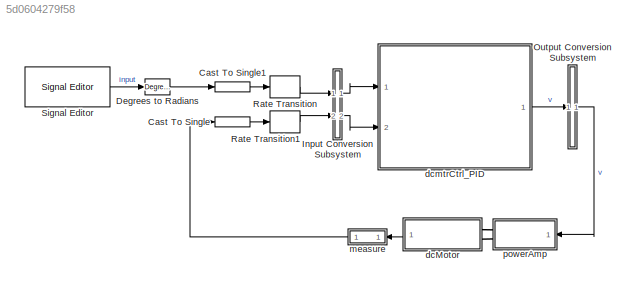
MODEL slx_5d0604279f58
KIND model
CONFIG AbsTol = auto
CONFIG EnableMultiTasking = off
CONFIG FixedStep = auto
CONFIG MaxStep = auto
CONFIG MinStep = auto
CONFIG PostLoadFcn = load('dcmtr_params');
CONFIG RelTol = 1e-3
CONFIG SampleTimeConstraint = Unconstrained
CONFIG SolverName = ode15s
CONFIG StartTime = 0.0
CONFIG StopTime = 13
BLOCK [DataTypeConversion] Cast To Single
  OutDataTypeStr = single
  RndMeth = Floor
  SaturateOnIntegerOverflow = off
BLOCK [DataTypeConversion] Cast To Single1
  OutDataTypeStr = single
  RndMeth = Floor
  SaturateOnIntegerOverflow = off
BLOCK [Reference] Degrees to Radians  REF=simulink_extras/Transformations/Degrees to
Radians
  Ports = [1, 1]
  SourceBlock = simulink_extras/Transformations/Degrees to\nRadians
  SourceProductBaseCode = SL
  SourceType = DegreesToRadians
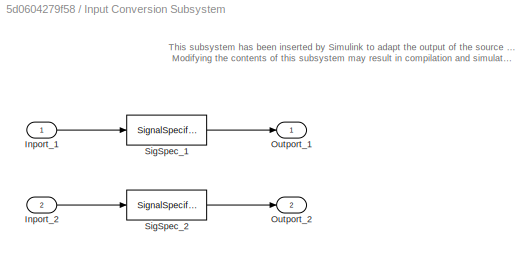
BLOCK [SubSystem] Input Conversion Subsystem
  AttributesFormatString = %<Description>
  Description = Signal spec.\nand routing
  Permissions = ReadOnly
  PermitHierarchicalResolution = ExplicitOnly
  Ports = [2, 2]
  RequestExecContextInheritance = off
  Tag = __SLT_ICS__
  TreatAsGroupedWhenPropagatingVariantConditions = off
  UserDataPersistent = on
BLOCK [Inport] Input Conversion Subsystem/Inport_1
BLOCK [Inport] Input Conversion Subsystem/Inport_2
  Port = 2
BLOCK [Outport] Input Conversion Subsystem/Outport_1
BLOCK [Outport] Input Conversion Subsystem/Outport_2
  Port = 2
BLOCK [SignalSpecification] Input Conversion Subsystem/SigSpec_1
  Dimensions = [1]
  OutDataTypeStr = single
  SampleTime = 0.01
  SignalType = real
  VarSizeSig = No
BLOCK [SignalSpecification] Input Conversion Subsystem/SigSpec_2
  Dimensions = [1]
  OutDataTypeStr = single
  SampleTime = 0.01
  SignalType = real
  VarSizeSig = No
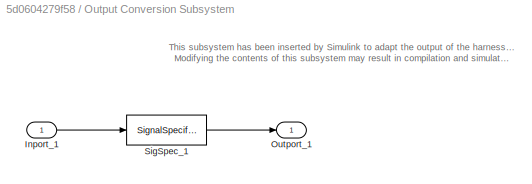
BLOCK [SubSystem] Output Conversion Subsystem
  AttributesFormatString = %<Description>
  Description = Signal spec.\nand routing
  Permissions = ReadOnly
  PermitHierarchicalResolution = ExplicitOnly
  Ports = [1, 1]
  RequestExecContextInheritance = off
  Tag = __SLT_OCS__
  TreatAsGroupedWhenPropagatingVariantConditions = off
  UserDataPersistent = on
BLOCK [Inport] Output Conversion Subsystem/Inport_1
BLOCK [Outport] Output Conversion Subsystem/Outport_1
BLOCK [SignalSpecification] Output Conversion Subsystem/SigSpec_1
  Dimensions = [1]
  OutDataTypeStr = single
  SampleTime = 0.01
  SignalType = real
  VarSizeSig = No
BLOCK [RateTransition] Rate Transition
  OutPortSampleTime = Ctrl_Ts
BLOCK [RateTransition] Rate Transition1
  OutPortSampleTime = Ctrl_Ts
BLOCK [Reference] Signal Editor  REF=SignalEditorBlockLib/Signal Editor
  Ports = [0, 1]
  SourceBlock = SignalEditorBlockLib/Signal Editor
  SourceProductBaseCode = SL
  SourceType = SignalEditor
  UserDataPersistent = on
BLOCK [SubSystem] dcMotor
  Ports = [0, 1, 0, 0, 0, 2]
  ReferencedSubsystem = dcmtr
  RequestExecContextInheritance = off
BLOCK [ModelReference] dcmtrCtrl_PID
  ModelNameDialog = dcmtrCtrl_PID
  ModelReferenceVersion = 2.1
  Ports = [2, 1]
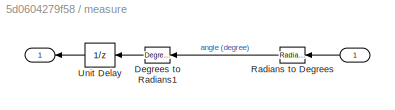
BLOCK [SubSystem] measure
  Ports = [1, 1]
  RequestExecContextInheritance = off
BLOCK [Inport] measure/ 
  NameLocation = top
BLOCK [Outport] measure/  
  NameLocation = top
BLOCK [Reference] measure/Degrees to Radians1  REF=simulink_extras/Transformations/Degrees to
Radians
  NameLocation = top
  Ports = [1, 1]
  SourceBlock = simulink_extras/Transformations/Degrees to\nRadians
  SourceProductBaseCode = SL
  SourceType = DegreesToRadians
BLOCK [Reference] measure/Radians to Degrees  REF=simulink_extras/Transformations/Radians
to Degrees
  NameLocation = top
  Ports = [1, 1]
  SourceBlock = simulink_extras/Transformations/Radians\nto Degrees
  SourceProductBaseCode = SL
  SourceType = RadiansToDegrees
BLOCK [UnitDelay] measure/Unit Delay
  HasFrameUpgradeWarning = on
  NameLocation = top
  SampleTime = Ts
BLOCK [SubSystem] powerAmp
  Ports = [1, 0, 0, 0, 0, 0, 2]
  ReferencedSubsystem = powerAmp
  RequestExecContextInheritance = off
ANNOTATION Input Conversion Subsystem: This subsystem has been inserted by Simulink to adapt the output of the source blocks to the interface required by the harnessed component. Modifying the contents of this subsystem may result in compilation and simulation failure.
ANNOTATION Output Conversion Subsystem: This subsystem has been inserted by Simulink to adapt the output of the harnessed component to the interface required by the sink blocks. Modifying the contents of this subsystem may result in compilation and simulation failure.
LINE Cast To Single1:1 -> Rate Transition:1
LINE Cast To Single:1 -> Rate Transition1:1
LINE Degrees to Radians:1 -> Cast To Single1:1
LINE Input Conversion Subsystem/Inport_1:1 -> Input Conversion Subsystem/SigSpec_1:1
LINE Input Conversion Subsystem/Inport_2:1 -> Input Conversion Subsystem/SigSpec_2:1
LINE Input Conversion Subsystem/SigSpec_1:1 -> Input Conversion Subsystem/Outport_1:1
LINE Input Conversion Subsystem/SigSpec_2:1 -> Input Conversion Subsystem/Outport_2:1
LINE Input Conversion Subsystem:1 -> dcmtrCtrl_PID:1
LINE Input Conversion Subsystem:2 -> dcmtrCtrl_PID:2
LINE Output Conversion Subsystem/Inport_1:1 -> Output Conversion Subsystem/SigSpec_1:1
LINE Output Conversion Subsystem/SigSpec_1:1 -> Output Conversion Subsystem/Outport_1:1
LINE Output Conversion Subsystem:1 -> powerAmp:1
LINE Rate Transition1:1 -> Input Conversion Subsystem:2
LINE Rate Transition:1 -> Input Conversion Subsystem:1
LINE Signal Editor:1 -> Degrees to Radians:1
LINE dcMotor:1 -> measure:1
LINE dcmtrCtrl_PID:1 -> Output Conversion Subsystem:1
LINE measure/ :1 -> measure/Radians to Degrees:1
LINE measure/Degrees to Radians1:1 -> measure/Unit Delay:1
LINE measure/Radians to Degrees:1 -> measure/Degrees to Radians1:1
LINE measure/Unit Delay:1 -> measure/  :1
LINE measure:1 -> Cast To Single:1
PLINE dcMotor:LConn1 -- powerAmp:RConn1
PLINE dcMotor:LConn2 -- powerAmp:RConn2
